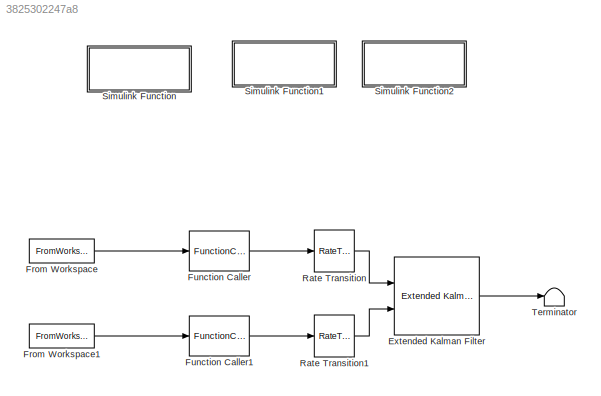
MODEL slx_3825302247a8
KIND model
CONFIG AbsTol = auto
CONFIG EnableMultiTasking = off
CONFIG FixedStep = auto
CONFIG MaxStep = auto
CONFIG MinStep = auto
CONFIG RelTol = 1e-3
CONFIG SampleTimeConstraint = Unconstrained
CONFIG Solver = VariableStepAuto
CONFIG SolverName = VariableStepAuto
CONFIG StartTime = 0.0
CONFIG StopTime = 10.0
BLOCK [Reference] Extended Kalman Filter  REF=sharedTrackingLibrary/Extended Kalman Filter
  Ports = [2, 1]
  SourceBlock = sharedTrackingLibrary/Extended Kalman Filter
  SourceProductBaseCode = CT
  SourceProductName = Control System Toolbox
  SourceType = Extended Kalman Filter
BLOCK [FromWorkspace] From Workspace
  SampleTime = 0
  VariableName = accang
  ZeroCross = on
BLOCK [FromWorkspace] From Workspace1
  SampleTime = 0
  VariableName = new_gps_angle
  ZeroCross = on
BLOCK [FunctionCaller] Function Caller
  FunctionPrototype = y = IMU(x1)
  Ports = [1, 1]
BLOCK [FunctionCaller] Function Caller1
  FunctionPrototype = y = GPS(x2)
  Ports = [1, 1]
BLOCK [RateTransition] Rate Transition
BLOCK [RateTransition] Rate Transition1
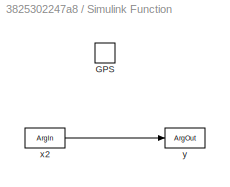
BLOCK [SubSystem] Simulink Function
  Ports = [0, 0, 0, 1]
  RequestExecContextInheritance = off
  TreatAsAtomicUnit = on
BLOCK [TriggerPort] Simulink Function/GPS
  FunctionName = GPS
  FunctionVisibility = scoped
  IsSimulinkFunction = on
  Ports = []
  StatesWhenEnabling = held
  TriggerType = function-call
  VariantControl = (inherit)
BLOCK [ArgIn] Simulink Function/x2
  ArgumentName = x2
  DisableCoverage = on
BLOCK [ArgOut] Simulink Function/y
  ArgumentName = y
  DisableCoverage = on
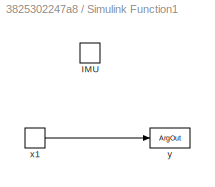
BLOCK [SubSystem] Simulink Function1
  Ports = [0, 0, 0, 1]
  RequestExecContextInheritance = off
  TreatAsAtomicUnit = on
BLOCK [TriggerPort] Simulink Function1/IMU
  FunctionName = IMU
  FunctionVisibility = scoped
  IsSimulinkFunction = on
  Ports = []
  StatesWhenEnabling = held
  TriggerType = function-call
  VariantControl = (inherit)
BLOCK [ArgIn] Simulink Function1/x1
  ArgumentName = x1
BLOCK [ArgOut] Simulink Function1/y
  ArgumentName = y
  DisableCoverage = on
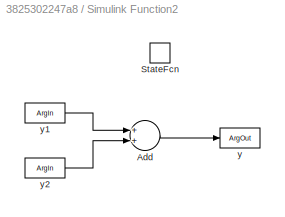
BLOCK [SubSystem] Simulink Function2
  Ports = [0, 0, 0, 1]
  RequestExecContextInheritance = off
  TreatAsAtomicUnit = on
BLOCK [Sum] Simulink Function2/Add
  InputSameDT = off
  OutDataTypeStr = Inherit: Inherit via internal rule
  Ports = [2, 1]
  SaturateOnIntegerOverflow = off
BLOCK [TriggerPort] Simulink Function2/StateFcn
  FunctionName = StateFcn
  FunctionVisibility = scoped
  IsSimulinkFunction = on
  Ports = []
  StatesWhenEnabling = held
  TriggerType = function-call
  VariantControl = (inherit)
BLOCK [ArgOut] Simulink Function2/y
  ArgumentName = y
  DisableCoverage = on
BLOCK [ArgIn] Simulink Function2/y1
  ArgumentName = y1
  DisableCoverage = on
BLOCK [ArgIn] Simulink Function2/y2
  ArgumentName = y2
  Port = 2
BLOCK [Terminator] Terminator
LINE Extended Kalman Filter:1 -> Terminator:1
LINE From Workspace1:1 -> Function Caller1:1
LINE From Workspace:1 -> Function Caller:1
LINE Function Caller1:1 -> Rate Transition1:1
LINE Function Caller:1 -> Rate Transition:1
LINE Rate Transition1:1 -> Extended Kalman Filter:2
LINE Rate Transition:1 -> Extended Kalman Filter:1
LINE Simulink Function/x2:1 -> Simulink Function/y:1
LINE Simulink Function1/x1:1 -> Simulink Function1/y:1
LINE Simulink Function2/Add:1 -> Simulink Function2/y:1
LINE Simulink Function2/y1:1 -> Simulink Function2/Add:1
LINE Simulink Function2/y2:1 -> Simulink Function2/Add:2
